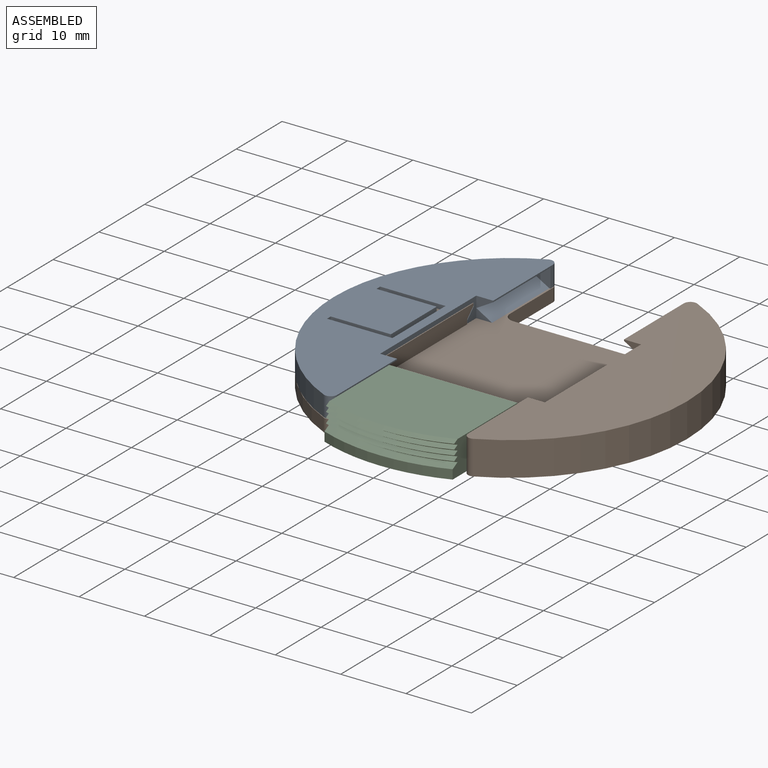
[diagram: assembled view]
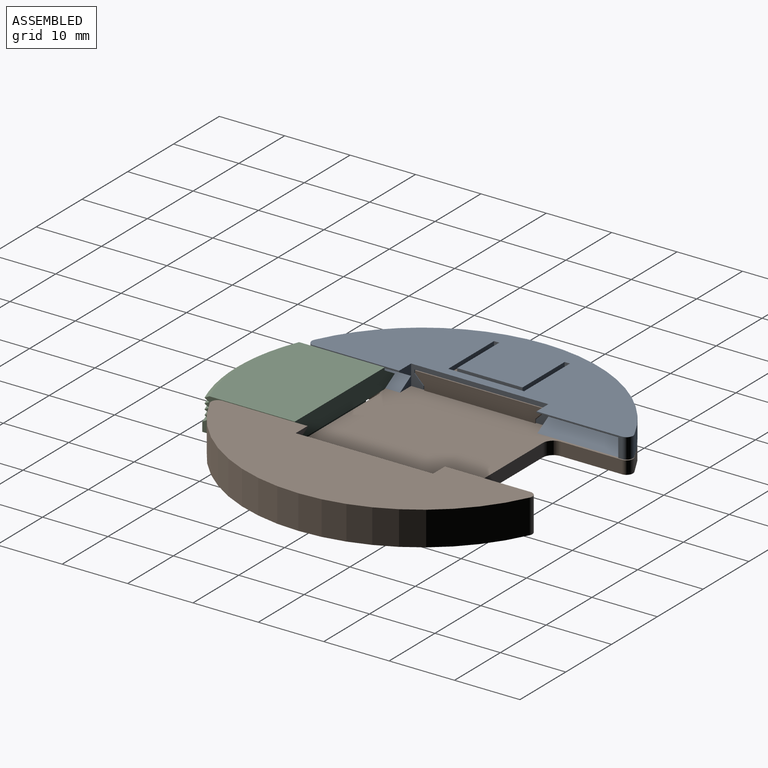
[diagram: assembled view, second angle]
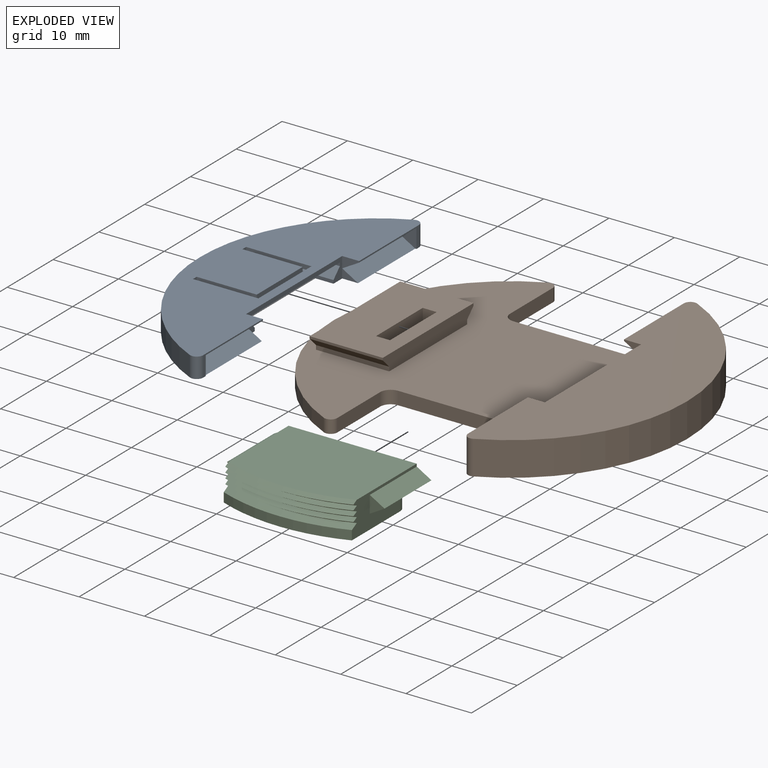
[diagram: exploded view]
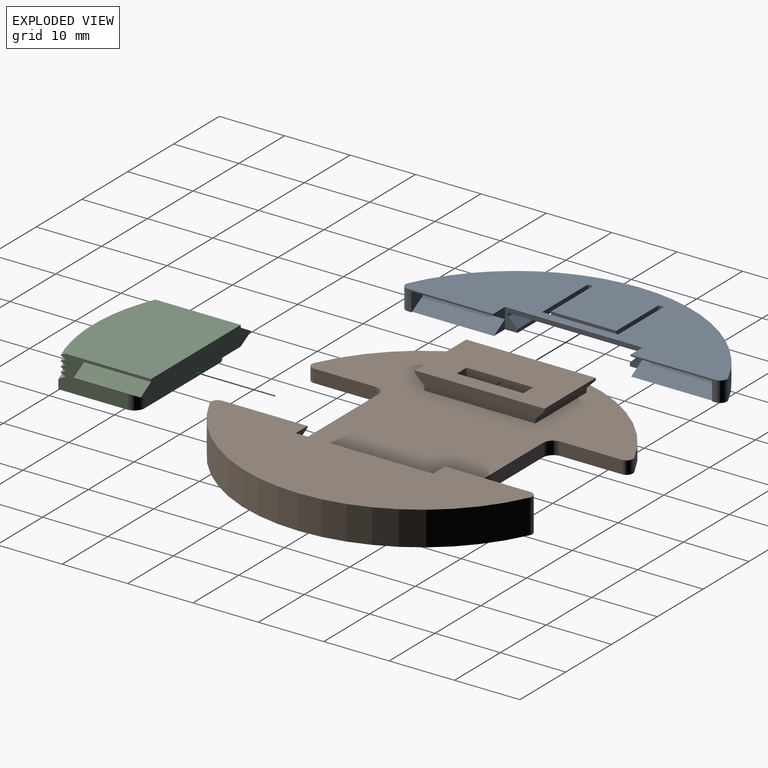
[diagram: exploded view, second angle]
ASSEMBLY  parts=3 mates=2
PART A: 34 faces, bbox 17x49.1x3.1 mm
  f0: plane 10x7.1mm, normal (0,0,-1), area 71mm2, adj f25,f28,f30,f33
  f1: plane 49.12x17mm, normal (0,0,1), area 538.1mm2, adj f3,f6,f8,f12,f13,f15,f16,f17
  f2: plane 10x0.1mm, normal (0,0,-1), area 1mm2, adj f28,f29,f30,f32
  f3: plane 21x3.1mm, normal (1,0,0), area 20.5mm2, adj f1,f14,f16,f17,f18,f19,f20,f21
  f4: plane 12.5x2.6mm, normal (0.5,0,-0.87), area 37.5mm2, adj f5,f6,f9,f17
  f5: plane 12.5x2.43mm, normal (0.5,0,0.87), area 35mm2, adj f4,f9,f14,f17
  f6: plane 13.06x3.1mm, normal (1,0,0), area 4.2mm2, adj f1,f4,f8,f9,f14,f17
  f7: plane 12.5x2.6mm, normal (0.5,0,-0.87), area 37.5mm2, adj f10,f11,f12,f16
  f8: cylinder r=1mm len=3.1mm, axis (0,0,-1), area 6.2mm2, adj f1,f6,f14,f15
  f9: plane 2.9x2.6mm, normal (0,1,0), area 3.9mm2, adj f4,f5,f6,f14
  f10: plane 12.5x2.43mm, normal (0.5,0,0.87), area 35mm2, adj f7,f11,f14,f16
  f11: plane 2.9x2.6mm, normal (0,-1,0), area 3.9mm2, adj f7,f10,f12,f14
  f12: plane 13.06x3.1mm, normal (1,0,0), area 4.2mm2, adj f1,f7,f11,f13,f14,f16
  f13: cylinder r=1mm len=3.1mm, axis (0,0,-1), area 6.2mm2, adj f1,f12,f14,f15
  f14: plane 49.12x17mm, normal (0,0,-1), area 361.6mm2, adj f3,f5,f6,f8,f9,f10,f11,f12
  f15: cylinder r=27mm len=48.93mm, axis (0,0,-1), area 189.8mm2, adj f1,f8,f13,f14
  f16: plane 3.1x2.6mm, normal (0,-1,0), area 4.2mm2, adj f1,f3,f7,f10,f12,f14
  f17: plane 3.1x2.6mm, normal (0,1,0), area 4.2mm2, adj f1,f3,f4,f5,f6,f14
  f18: plane 11.4x0.5mm, normal (0,-1,0), area 5.7mm2, adj f3,f14,f19,f25
  f19: plane 11.4x1.4mm, normal (0,-0.71,0.71), area 22.6mm2, adj f3,f18,f20,f25
  f20: plane 11.4x0.5mm, normal (0,-1,0), area 5.7mm2, adj f3,f19,f21,f25
  f21: plane 20x11.4mm, normal (0,0,-1), area 112mm2, adj f3,f20,f22,f25,f26,f27,f31
  f22: plane 11.4x0.5mm, normal (0,1,0), area 5.7mm2, adj f3,f21,f23,f25
  f23: plane 11.4x1.4mm, normal (0,0.71,0.71), area 22.6mm2, adj f3,f22,f24,f25
  f24: plane 11.4x0.5mm, normal (0,1,0), area 5.7mm2, adj f3,f14,f23,f25
  f25: plane 20x3.1mm, normal (1,0,0), area 45.8mm2, adj f0,f1,f14,f18,f19,f20,f21,f22
  f26: plane 11.6x0.7mm, normal (-1,0,0), area 8.1mm2, adj f1,f21,f27,f31
  f27: plane 10x0.7mm, normal (0,-1,0), area 7mm2, adj f1,f21,f25,f26
  f28: plane 9.2x2.7mm, normal (0,1,0), area 8.4mm2, adj f0,f1,f2,f25,f29,f32,f33
  f29: plane 10x0.7mm, normal (1,0,0), area 7mm2, adj f1,f2,f28,f30
  f30: plane 9.2x2.7mm, normal (0,-1,0), area 8.4mm2, adj f0,f1,f2,f25,f29,f32,f33
  f31: plane 10x0.7mm, normal (0,1,0), area 7mm2, adj f1,f21,f25,f26
  f32: plane 10x2mm, normal (0.71,0,-0.71), area 28.3mm2, adj f2,f28,f30,f33
  f33: plane 10x2mm, normal (-1,0,0), area 20mm2, adj f0,f28,f30,f32
PART B: 41 faces, bbox 54x49.1x5.2 mm
  f0: plane 13.06x5.2mm, normal (-1,0,0), area 23mm2, adj f1,f2,f17,f25,f26,f27,f31,f35
  f1: plane 12.5x2.6mm, normal (-0.5,0,0.87), area 37.5mm2, adj f0,f2,f10,f31,f35
  f2: plane 12.5x2.6mm, normal (-0.5,0,-0.87), area 37.5mm2, adj f0,f1,f31,f35
  f3: plane 11.2x0.64mm, normal (0,1,0), area 7.2mm2, adj f4,f10,f32,f33
  f4: plane 11.2x1.4mm, normal (0,0.71,-0.71), area 22.2mm2, adj f3,f5,f32,f33
  f5: plane 11.2x0.36mm, normal (0,1,0), area 4mm2, adj f4,f6,f32,f33
  f6: plane 19.8x11.2mm, normal (0,0,1), area 199.9mm2, adj f5,f7,f32,f33,f37,f38,f39,f40
  f7: plane 11.2x0.36mm, normal (0,-1,0), area 4mm2, adj f6,f8,f32,f33
  f8: plane 11.2x1.4mm, normal (0,-0.71,-0.71), area 22.2mm2, adj f7,f9,f32,f33
  f9: plane 11.2x0.64mm, normal (0,-1,0), area 7.2mm2, adj f8,f10,f32,f33
  f10: plane 49.12x39.6mm, normal (0,0,1), area 986.2mm2, adj f1,f3,f9,f11,f12,f13,f14,f15
  f11: plane 9.38x2mm, normal (1,0,0), area 18.8mm2, adj f10,f13,f22,f26
  f12: plane 9.38x2mm, normal (1,0,0), area 18.8mm2, adj f10,f15,f23,f26
  f13: cylinder r=1mm len=2mm, axis (0,0,-1), area 4mm2, adj f10,f11,f14,f26
  f14: cylinder r=27mm len=48.93mm, axis (0,0,-1), area 122.5mm2, adj f10,f13,f15,f26
  f15: cylinder r=1mm len=2mm, axis (0,0,-1), area 4mm2, adj f10,f12,f14,f26
  f16: plane 13.06x5.2mm, normal (-1,0,0), area 23mm2, adj f19,f20,f26,f27,f28,f29,f30,f34
  f17: cylinder r=1mm len=5.2mm, axis (0,0,-1), area 10.4mm2, adj f0,f18,f26,f27
  f18: cylinder r=27mm len=48.93mm, axis (0,0,-1), area 318.4mm2, adj f17,f19,f26,f27
  f19: cylinder r=1mm len=5.2mm, axis (0,0,-1), area 10.4mm2, adj f16,f18,f26,f27
  f20: cylinder r=1.6mm len=2mm, axis (0,0,-1), area 5mm2, adj f10,f16,f21,f26
  f21: plane 16.8x2mm, normal (0,1,0), area 33.6mm2, adj f10,f20,f22,f26
  f22: cylinder r=1.6mm len=2mm, axis (0,0,-1), area 5mm2, adj f10,f11,f21,f26
  f23: cylinder r=1.6mm len=2mm, axis (0,0,-1), area 5mm2, adj f10,f12,f24,f26
  f24: plane 16.8x2mm, normal (0,-1,0), area 33.6mm2, adj f10,f23,f25,f26
  f25: cylinder r=1.6mm len=2mm, axis (0,0,-1), area 5mm2, adj f0,f10,f24,f26
  f26: plane 54x49.12mm, normal (0,0,-1), area 1738.7mm2, adj f0,f11,f12,f13,f14,f15,f16,f17
  f27: plane 49.12x17mm, normal (0,0,1), area 562.1mm2, adj f0,f16,f17,f18,f19,f34,f35,f36
  f28: plane 12.5x2.6mm, normal (-0.5,0,0.87), area 37.5mm2, adj f10,f16,f29,f30,f34
  f29: plane 12.5x2.6mm, normal (-0.5,0,-0.87), area 37.5mm2, adj f16,f28,f30,f34
  f30: plane 3x2.6mm, normal (0,-1,0), area 3.9mm2, adj f16,f28,f29
  f31: plane 3x2.6mm, normal (0,1,0), area 3.9mm2, adj f0,f1,f2
  f32: plane 19.8x2.4mm, normal (-1,0,0), area 43.8mm2, adj f3,f4,f5,f6,f7,f8,f9,f10
  f33: plane 19.8x2.4mm, normal (1,0,0), area 43.8mm2, adj f3,f4,f5,f6,f7,f8,f9,f10
  f34: plane 3.2x2.6mm, normal (0,-1,0), area 4.4mm2, adj f10,f16,f27,f28,f29,f36
  f35: plane 3.2x2.6mm, normal (0,1,0), area 4.4mm2, adj f0,f1,f2,f10,f27,f36
  f36: plane 21x3.2mm, normal (-1,0,0), area 67.2mm2, adj f10,f27,f34,f35
  f37: plane 2.14x2.14mm, normal (0,-1,0), area 2.3mm2, adj f6,f39,f40
  f38: plane 2.14x2.14mm, normal (0,1,0), area 2.3mm2, adj f6,f39,f40
  f39: plane 10.2x2.14mm, normal (-0.71,0,0.71), area 30.9mm2, adj f6,f37,f38,f40
  f40: plane 10.2x2.14mm, normal (1,0,0), area 21.8mm2, adj f6,f37,f38,f39
PART C: 34 faces, bbox 24.1x16x5.2 mm
  f0: plane 19.6x15mm, normal (0,0,1), area 281.7mm2, adj f1,f2,f17,f27
  f1: plane 14.17x5.21mm, normal (-1,0,0), area 36.3mm2, adj f0,f9,f10,f11,f13,f14,f17,f19
  f2: plane 14.17x5.21mm, normal (1,0,0), area 36.3mm2, adj f0,f9,f10,f12,f15,f16,f17,f19
  f3: plane 16.4x2.2mm, normal (0,1,0), area 36.1mm2, adj f10,f18,f32,f33
  f4: plane 16.4x10.72mm, normal (0,0,-1), area 166.8mm2, adj f5,f6,f7,f8,f28,f29,f30,f31
  f5: plane 13.2x3.6mm, normal (0,-1,0), area 47.5mm2, adj f4,f10,f28,f29
  f6: plane 6.59x3.6mm, normal (-1,0,0), area 23.7mm2, adj f4,f10,f29,f31
  f7: cylinder r=25.4mm len=14.09mm, axis (0,0,1), area 51.4mm2, adj f4,f10,f30,f31
  f8: plane 6.59x3.6mm, normal (1,0,0), area 23.7mm2, adj f4,f10,f28,f30
  f9: cylinder r=27mm len=19.6mm, axis (0,0,1), area 28.5mm2, adj f1,f2,f10,f26
  f10: plane 19.6x13.92mm, normal (0,0,-1), area 93mm2, adj f1,f2,f3,f5,f6,f7,f8,f9
  f11: plane 2.6x2.25mm, normal (0,-1,0), area 2.9mm2, adj f1,f13,f14
  f12: plane 2.6x2.25mm, normal (0,-1,0), area 2.9mm2, adj f2,f15,f16
  f13: plane 10.25x2.25mm, normal (-0.5,0,-0.87), area 26.6mm2, adj f1,f11,f14,f17,f18
  f14: plane 10.25x2.25mm, normal (-0.5,0,0.87), area 26.6mm2, adj f1,f11,f13,f17
  f15: plane 10.25x2.25mm, normal (0.5,0,0.87), area 26.6mm2, adj f2,f12,f16,f17
  f16: plane 10.25x2.25mm, normal (0.5,0,-0.87), area 26.6mm2, adj f2,f12,f15,f17,f18
  f17: plane 24.1x3mm, normal (0,1,0), area 64.7mm2, adj f0,f1,f2,f13,f14,f15,f16,f18
  f18: plane 19.6x3.68mm, normal (0,0,-1), area 41.9mm2, adj f3,f13,f16,f17,f32,f33
  f19: cone r=26mm half-angle=60deg, axis (0,0,1), area 16.1mm2, adj f1,f2,f20,f27
  f20: cone r=26.69mm half-angle=60deg, axis (0,0,-1), area 16.1mm2, adj f1,f2,f19,f21
  f21: cone r=26mm half-angle=60deg, axis (0,0,1), area 16.1mm2, adj f1,f2,f20,f22
  f22: cone r=26.69mm half-angle=60deg, axis (0,0,-1), area 16.1mm2, adj f1,f2,f21,f23
  f23: cone r=26mm half-angle=60deg, axis (0,0,1), area 16.1mm2, adj f1,f2,f22,f24
  f24: cone r=26.69mm half-angle=60deg, axis (0,0,-1), area 16.1mm2, adj f1,f2,f23,f25
  f25: cone r=26mm half-angle=60deg, axis (0,0,1), area 16.1mm2, adj f1,f2,f24,f26
  f26: cone r=26mm half-angle=60deg, axis (0,0,-1), area 23.2mm2, adj f1,f2,f9,f25
  f27: cone r=26.69mm half-angle=60deg, axis (0,0,-1), area 16.1mm2, adj f0,f1,f2,f19
  f28: cylinder r=1.6mm len=3.6mm, axis (0,0,-1), area 9mm2, adj f4,f5,f8,f10
  f29: cylinder r=1.6mm len=3.6mm, axis (0,0,-1), area 9mm2, adj f4,f5,f6,f10
  f30: cylinder r=1.6mm len=3.6mm, axis (0,0,1), area 7.4mm2, adj f4,f7,f8,f10
  f31: cylinder r=1.6mm len=3.6mm, axis (0,0,1), area 7.4mm2, adj f4,f6,f7,f10
  f32: cylinder r=1.6mm len=2.2mm, axis (0,0,1), area 5.5mm2, adj f2,f3,f10,f18
  f33: cylinder r=1.6mm len=2.2mm, axis (0,0,1), area 5.5mm2, adj f1,f3,f10,f18
PLACE A t=(-0.04,0,-0.35)mm
PLACE B t=(-0.04,0,-0.35)mm fixed
PLACE C t=(-51.79,-1.55,-0.35)mm
MATE slider C.f12 <-> B.f31  axis (0,-1,0) through (12.06,-22.8,3.15)mm
MATE slider B.f32 <-> A.f25  axis (-1,0,0) through (-23.84,0,1.65)mm
